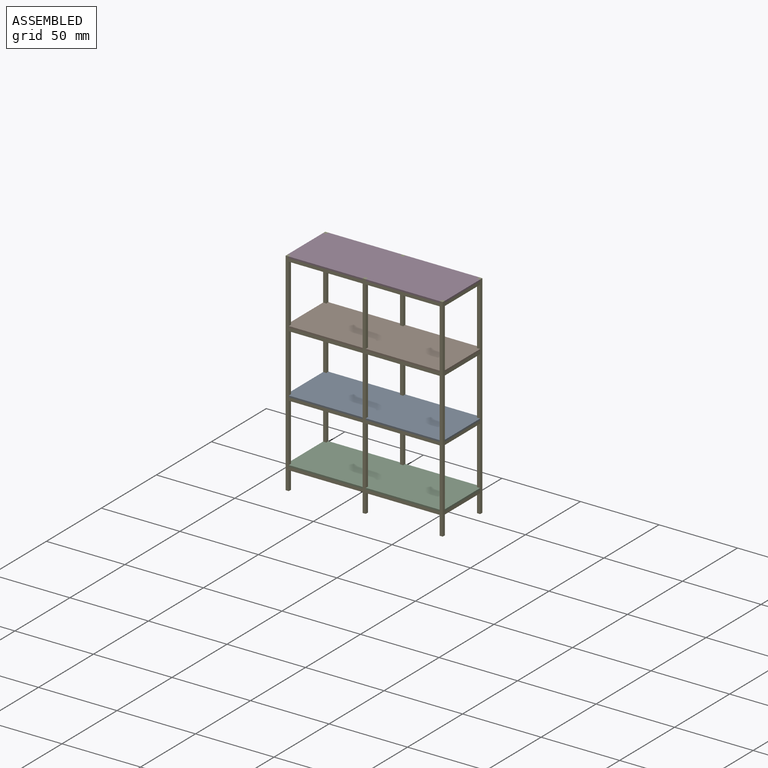
[diagram: assembled view]
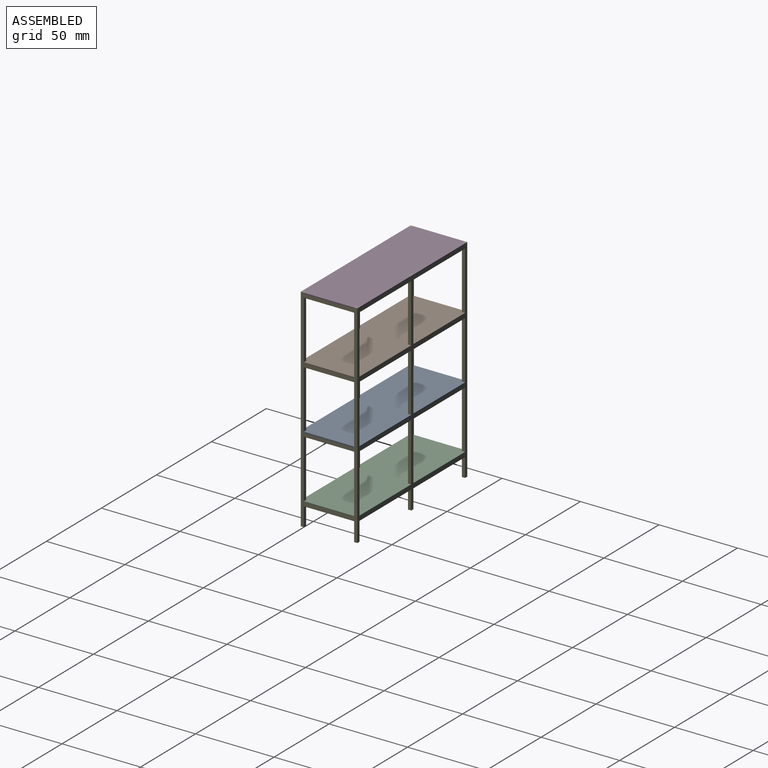
[diagram: assembled view, second angle]
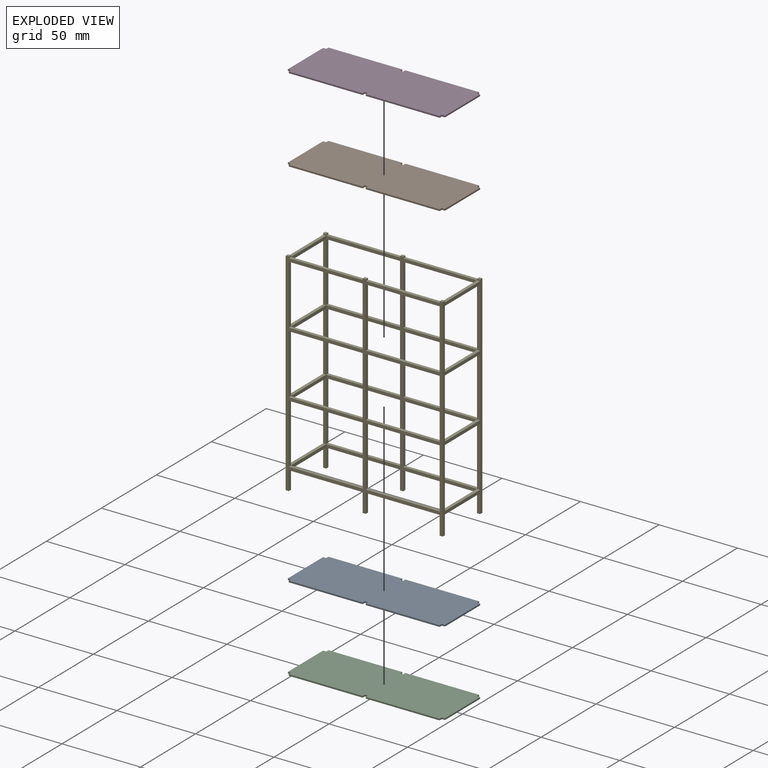
[diagram: exploded view]
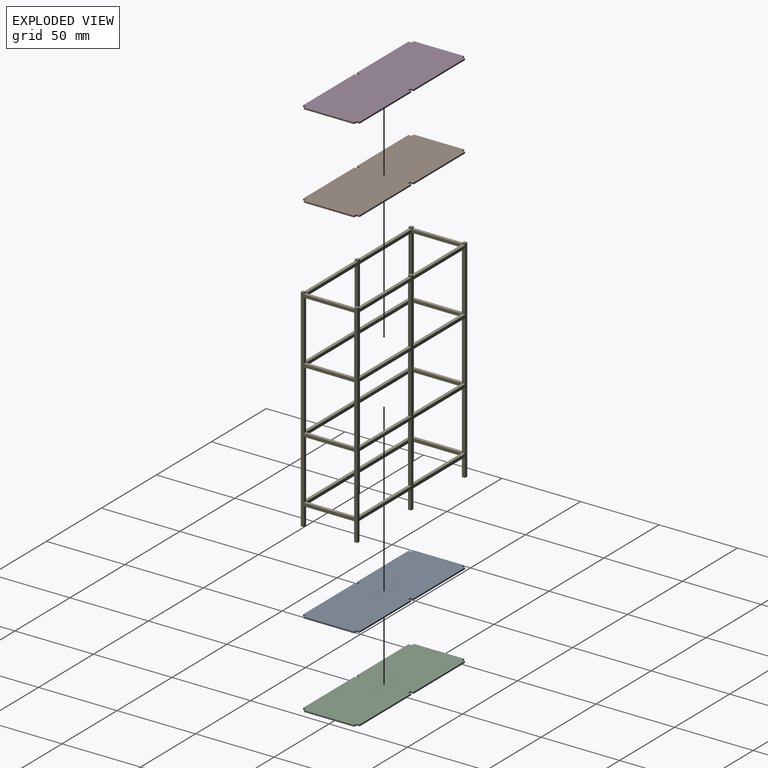
[diagram: exploded view, second angle]
ASSEMBLY  parts=5 mates=4
PART A: 22 faces, bbox 100x36x1 mm
  f0: plane 32x1mm, normal (-1,0,0), area 32mm2, adj f6,f7,f11,f13
  f1: plane 47x1mm, normal (0,-1,0), area 47mm2, adj f6,f7,f14,f17
  f2: plane 47x1mm, normal (0,-1,0), area 47mm2, adj f6,f7,f16,f20
  f3: plane 32x1mm, normal (1,0,0), area 32mm2, adj f6,f7,f18,f21
  f4: plane 47x1mm, normal (0,1,0), area 47mm2, adj f6,f7,f10,f12
  f5: plane 47x1mm, normal (0,1,0), area 47mm2, adj f6,f7,f9,f19
  f6: plane 100x36mm, normal (0,0,-1), area 3576mm2, adj f0,f1,f2,f3,f4,f5,f8,f9
  f7: plane 100x36mm, normal (0,0,1), area 3576mm2, adj f0,f1,f2,f3,f4,f5,f8,f9
  f8: plane 2x1mm, normal (0,1,0), area 2mm2, adj f6,f7,f9,f10
  f9: plane 2x1mm, normal (-1,0,0), area 2mm2, adj f5,f6,f7,f8
  f10: plane 2x1mm, normal (1,0,0), area 2mm2, adj f4,f6,f7,f8
  f11: plane 2x1mm, normal (0,1,0), area 2mm2, adj f0,f6,f7,f12
  f12: plane 2x1mm, normal (-1,0,0), area 2mm2, adj f4,f6,f7,f11
  f13: plane 2x1mm, normal (0,-1,0), area 2mm2, adj f0,f6,f7,f14
  f14: plane 2x1mm, normal (-1,0,0), area 2mm2, adj f1,f6,f7,f13
  f15: plane 2x1mm, normal (0,-1,0), area 2mm2, adj f6,f7,f16,f17
  f16: plane 2x1mm, normal (-1,0,0), area 2mm2, adj f2,f6,f7,f15
  f17: plane 2x1mm, normal (1,0,0), area 2mm2, adj f1,f6,f7,f15
  f18: plane 2x1mm, normal (0,1,0), area 2mm2, adj f3,f6,f7,f19
  f19: plane 2x1mm, normal (1,0,0), area 2mm2, adj f5,f6,f7,f18
  f20: plane 2x1mm, normal (1,0,0), area 2mm2, adj f2,f6,f7,f21
  f21: plane 2x1mm, normal (0,-1,0), area 2mm2, adj f3,f6,f7,f20
PART B: 22 faces, bbox 100x36x1 mm
  f0: plane 32x1mm, normal (-1,0,0), area 32mm2, adj f6,f7,f11,f13
  f1: plane 47x1mm, normal (0,-1,0), area 47mm2, adj f6,f7,f14,f17
  f2: plane 47x1mm, normal (0,-1,0), area 47mm2, adj f6,f7,f16,f20
  f3: plane 32x1mm, normal (1,0,0), area 32mm2, adj f6,f7,f18,f21
  f4: plane 47x1mm, normal (0,1,0), area 47mm2, adj f6,f7,f10,f12
  f5: plane 47x1mm, normal (0,1,0), area 47mm2, adj f6,f7,f9,f19
  f6: plane 100x36mm, normal (0,0,-1), area 3576mm2, adj f0,f1,f2,f3,f4,f5,f8,f9
  f7: plane 100x36mm, normal (0,0,1), area 3576mm2, adj f0,f1,f2,f3,f4,f5,f8,f9
  f8: plane 2x1mm, normal (0,1,0), area 2mm2, adj f6,f7,f9,f10
  f9: plane 2x1mm, normal (-1,0,0), area 2mm2, adj f5,f6,f7,f8
  f10: plane 2x1mm, normal (1,0,0), area 2mm2, adj f4,f6,f7,f8
  f11: plane 2x1mm, normal (0,1,0), area 2mm2, adj f0,f6,f7,f12
  f12: plane 2x1mm, normal (-1,0,0), area 2mm2, adj f4,f6,f7,f11
  f13: plane 2x1mm, normal (0,-1,0), area 2mm2, adj f0,f6,f7,f14
  f14: plane 2x1mm, normal (-1,0,0), area 2mm2, adj f1,f6,f7,f13
  f15: plane 2x1mm, normal (0,-1,0), area 2mm2, adj f6,f7,f16,f17
  f16: plane 2x1mm, normal (-1,0,0), area 2mm2, adj f2,f6,f7,f15
  f17: plane 2x1mm, normal (1,0,0), area 2mm2, adj f1,f6,f7,f15
  f18: plane 2x1mm, normal (0,1,0), area 2mm2, adj f3,f6,f7,f19
  f19: plane 2x1mm, normal (1,0,0), area 2mm2, adj f5,f6,f7,f18
  f20: plane 2x1mm, normal (1,0,0), area 2mm2, adj f2,f6,f7,f21
  f21: plane 2x1mm, normal (0,-1,0), area 2mm2, adj f3,f6,f7,f20
PART C: 22 faces, bbox 100x36x1 mm
  f0: plane 32x1mm, normal (-1,0,0), area 32mm2, adj f6,f7,f11,f13
  f1: plane 47x1mm, normal (0,-1,0), area 47mm2, adj f6,f7,f14,f17
  f2: plane 47x1mm, normal (0,-1,0), area 47mm2, adj f6,f7,f16,f20
  f3: plane 32x1mm, normal (1,0,0), area 32mm2, adj f6,f7,f18,f21
  f4: plane 47x1mm, normal (0,1,0), area 47mm2, adj f6,f7,f10,f12
  f5: plane 47x1mm, normal (0,1,0), area 47mm2, adj f6,f7,f9,f19
  f6: plane 100x36mm, normal (0,0,-1), area 3576mm2, adj f0,f1,f2,f3,f4,f5,f8,f9
  f7: plane 100x36mm, normal (0,0,1), area 3576mm2, adj f0,f1,f2,f3,f4,f5,f8,f9
  f8: plane 2x1mm, normal (0,1,0), area 2mm2, adj f6,f7,f9,f10
  f9: plane 2x1mm, normal (-1,0,0), area 2mm2, adj f5,f6,f7,f8
  f10: plane 2x1mm, normal (1,0,0), area 2mm2, adj f4,f6,f7,f8
  f11: plane 2x1mm, normal (0,1,0), area 2mm2, adj f0,f6,f7,f12
  f12: plane 2x1mm, normal (-1,0,0), area 2mm2, adj f4,f6,f7,f11
  f13: plane 2x1mm, normal (0,-1,0), area 2mm2, adj f0,f6,f7,f14
  f14: plane 2x1mm, normal (-1,0,0), area 2mm2, adj f1,f6,f7,f13
  f15: plane 2x1mm, normal (0,-1,0), area 2mm2, adj f6,f7,f16,f17
  f16: plane 2x1mm, normal (-1,0,0), area 2mm2, adj f2,f6,f7,f15
  f17: plane 2x1mm, normal (1,0,0), area 2mm2, adj f1,f6,f7,f15
  f18: plane 2x1mm, normal (0,1,0), area 2mm2, adj f3,f6,f7,f19
  f19: plane 2x1mm, normal (1,0,0), area 2mm2, adj f5,f6,f7,f18
  f20: plane 2x1mm, normal (1,0,0), area 2mm2, adj f2,f6,f7,f21
  f21: plane 2x1mm, normal (0,-1,0), area 2mm2, adj f3,f6,f7,f20
PART D: 22 faces, bbox 100x36x1 mm
  f0: plane 32x1mm, normal (-1,0,0), area 32mm2, adj f6,f7,f15,f17
  f1: plane 47x1mm, normal (0,-1,0), area 47mm2, adj f6,f7,f12,f20
  f2: plane 47x1mm, normal (0,-1,0), area 47mm2, adj f6,f7,f13,f16
  f3: plane 32x1mm, normal (1,0,0), area 32mm2, adj f6,f7,f19,f21
  f4: plane 47x1mm, normal (0,1,0), area 47mm2, adj f6,f7,f10,f14
  f5: plane 47x1mm, normal (0,1,0), area 47mm2, adj f6,f7,f9,f18
  f6: plane 100x36mm, normal (0,0,-1), area 3576mm2, adj f0,f1,f2,f3,f4,f5,f8,f9
  f7: plane 100x36mm, normal (0,0,1), area 3576mm2, adj f0,f1,f2,f3,f4,f5,f8,f9
  f8: plane 2x1mm, normal (0,1,0), area 2mm2, adj f6,f7,f9,f10
  f9: plane 2x1mm, normal (-1,0,0), area 2mm2, adj f5,f6,f7,f8
  f10: plane 2x1mm, normal (1,0,0), area 2mm2, adj f4,f6,f7,f8
  f11: plane 2x1mm, normal (0,-1,0), area 2mm2, adj f6,f7,f12,f13
  f12: plane 2x1mm, normal (-1,0,0), area 2mm2, adj f1,f6,f7,f11
  f13: plane 2x1mm, normal (1,0,0), area 2mm2, adj f2,f6,f7,f11
  f14: plane 2x1mm, normal (-1,0,0), area 2mm2, adj f4,f6,f7,f15
  f15: plane 2x1mm, normal (0,1,0), area 2mm2, adj f0,f6,f7,f14
  f16: plane 2x1mm, normal (-1,0,0), area 2mm2, adj f2,f6,f7,f17
  f17: plane 2x1mm, normal (0,-1,0), area 2mm2, adj f0,f6,f7,f16
  f18: plane 2x1mm, normal (1,0,0), area 2mm2, adj f5,f6,f7,f19
  f19: plane 2x1mm, normal (0,1,0), area 2mm2, adj f3,f6,f7,f18
  f20: plane 2x1mm, normal (1,0,0), area 2mm2, adj f1,f6,f7,f21
  f21: plane 2x1mm, normal (0,-1,0), area 2mm2, adj f3,f6,f7,f20
PART E: 134 faces, bbox 100x36x135 mm
  f0: plane 38x2mm, normal (-1,0,0), area 76mm2, adj f13,f62,f65,f95
  f1: plane 38x2mm, normal (-1,0,0), area 76mm2, adj f14,f61,f64,f95
  f2: plane 32x2mm, normal (-1,0,0), area 64mm2, adj f31,f32,f59,f124
  f3: plane 38x2mm, normal (-1,0,0), area 76mm2, adj f24,f40,f43,f104
  f4: plane 32x2mm, normal (-1,0,0), area 64mm2, adj f29,f30,f59,f124
  f5: plane 38x2mm, normal (-1,0,0), area 76mm2, adj f25,f41,f44,f104
  f6: plane 12x2mm, normal (-1,0,0), area 24mm2, adj f17,f19,f63,f95
  f7: plane 12x2mm, normal (-1,0,0), area 24mm2, adj f26,f27,f42,f104
  f8: plane 38x2mm, normal (-1,0,0), area 76mm2, adj f15,f46,f60,f95
  f9: plane 38x2mm, normal (-1,0,0), area 76mm2, adj f23,f38,f39,f104
  f10: plane 32x2mm, normal (-1,0,0), area 64mm2, adj f33,f34,f59,f124
  f11: plane 2x1mm, normal (-1,0,0), area 2mm2, adj f16,f21,f45,f95
  f12: plane 2x1mm, normal (-1,0,0), area 2mm2, adj f22,f28,f37,f104
  f13: plane 38x2mm, normal (0,1,0), area 76mm2, adj f0,f18,f30,f31
  f14: plane 38x2mm, normal (0,1,0), area 76mm2, adj f1,f18,f32,f33
  f15: plane 38x2mm, normal (0,1,0), area 76mm2, adj f8,f18,f34,f35
  f16: plane 2x1mm, normal (0,1,0), area 2mm2, adj f11,f18,f21,f36
  f17: plane 2x2mm, normal (0,0,-1), area 4mm2, adj f6,f18,f19,f95
  f18: plane 135x36mm, normal (1,0,0), area 796mm2, adj f13,f14,f15,f16,f17,f19,f21,f22
  f19: plane 12x2mm, normal (0,1,0), area 24mm2, adj f6,f17,f18,f29
  f20: plane 32x2mm, normal (-1,0,0), area 64mm2, adj f35,f36,f59,f124
  f21: plane 2x2mm, normal (0,0,1), area 4mm2, adj f11,f16,f18,f95
  f22: plane 2x1mm, normal (0,-1,0), area 2mm2, adj f12,f18,f28,f36
  f23: plane 38x2mm, normal (0,-1,0), area 76mm2, adj f9,f18,f34,f35
  f24: plane 38x2mm, normal (0,-1,0), area 76mm2, adj f3,f18,f32,f33
  f25: plane 38x2mm, normal (0,-1,0), area 76mm2, adj f5,f18,f30,f31
  f26: plane 2x2mm, normal (0,0,-1), area 4mm2, adj f7,f18,f27,f104
  f27: plane 12x2mm, normal (0,-1,0), area 24mm2, adj f7,f18,f26,f29
  f28: plane 2x2mm, normal (0,0,1), area 4mm2, adj f12,f18,f22,f104
  f29: plane 32x2mm, normal (0,0,-1), area 64mm2, adj f4,f18,f19,f27
  f30: plane 32x2mm, normal (0,0,1), area 64mm2, adj f4,f13,f18,f25
  f31: plane 32x2mm, normal (0,0,-1), area 64mm2, adj f2,f13,f18,f25
  f32: plane 32x2mm, normal (0,0,1), area 64mm2, adj f2,f14,f18,f24
  f33: plane 32x2mm, normal (0,0,-1), area 64mm2, adj f10,f14,f18,f24
  f34: plane 32x2mm, normal (0,0,1), area 64mm2, adj f10,f15,f18,f23
  f35: plane 32x2mm, normal (0,0,-1), area 64mm2, adj f15,f18,f20,f23
  f36: plane 32x2mm, normal (0,0,1), area 64mm2, adj f16,f18,f20,f22
  f37: plane 47x2mm, normal (0,0,1), area 94mm2, adj f12,f104,f124,f125
  f38: plane 47x2mm, normal (0,0,-1), area 94mm2, adj f9,f104,f120,f124
  f39: plane 47x2mm, normal (0,0,1), area 94mm2, adj f9,f104,f120,f124
  f40: plane 47x2mm, normal (0,0,-1), area 94mm2, adj f3,f104,f119,f124
  f41: plane 47x2mm, normal (0,0,1), area 94mm2, adj f5,f104,f117,f124
  f42: plane 47x2mm, normal (0,0,-1), area 94mm2, adj f7,f104,f118,f124
  f43: plane 47x2mm, normal (0,0,1), area 94mm2, adj f3,f104,f119,f124
  f44: plane 47x2mm, normal (0,0,-1), area 94mm2, adj f5,f104,f117,f124
  f45: plane 47x2mm, normal (0,0,1), area 94mm2, adj f11,f58,f59,f95
  f46: plane 47x2mm, normal (0,0,-1), area 94mm2, adj f8,f54,f59,f95
  f47: plane 38x2mm, normal (-1,0,0), area 76mm2, adj f59,f71,f72,f95
  f48: plane 12x2mm, normal (-1,0,0), area 24mm2, adj f55,f59,f70,f95
  f49: plane 38x2mm, normal (-1,0,0), area 76mm2, adj f59,f69,f73,f95
  f50: plane 38x2mm, normal (-1,0,0), area 76mm2, adj f59,f66,f68,f95
  f51: plane 38x2mm, normal (1,0,0), area 76mm2, adj f59,f62,f65,f95
  f52: plane 12x2mm, normal (1,0,0), area 24mm2, adj f55,f59,f63,f95
  f53: plane 38x2mm, normal (1,0,0), area 76mm2, adj f59,f61,f64,f95
  f54: plane 38x2mm, normal (1,0,0), area 76mm2, adj f46,f59,f60,f95
  f55: plane 2x2mm, normal (0,0,-1), area 4mm2, adj f48,f52,f59,f95
  f56: plane 2x2mm, normal (0,0,1), area 4mm2, adj f57,f58,f59,f95
  f57: plane 2x1mm, normal (-1,0,0), area 2mm2, adj f56,f59,f67,f95
  f58: plane 2x1mm, normal (1,0,0), area 2mm2, adj f45,f56,f59,f95
  f59: plane 135x96mm, normal (0,1,0), area 1022mm2, adj f2,f4,f10,f20,f45,f46,f47,f48
  f60: plane 47x2mm, normal (0,0,1), area 94mm2, adj f8,f54,f59,f95
  f61: plane 47x2mm, normal (0,0,-1), area 94mm2, adj f1,f53,f59,f95
  f62: plane 47x2mm, normal (0,0,1), area 94mm2, adj f0,f51,f59,f95
  f63: plane 47x2mm, normal (0,0,-1), area 94mm2, adj f6,f52,f59,f95
  f64: plane 47x2mm, normal (0,0,1), area 94mm2, adj f1,f53,f59,f95
  f65: plane 47x2mm, normal (0,0,-1), area 94mm2, adj f0,f51,f59,f95
  f66: plane 47x2mm, normal (0,0,-1), area 94mm2, adj f50,f59,f81,f95
  f67: plane 47x2mm, normal (0,0,1), area 94mm2, adj f57,f59,f85,f95
  f68: plane 47x2mm, normal (0,0,1), area 94mm2, adj f50,f59,f81,f95
  f69: plane 47x2mm, normal (0,0,-1), area 94mm2, adj f49,f59,f74,f95
  f70: plane 47x2mm, normal (0,0,-1), area 94mm2, adj f48,f59,f84,f95
  f71: plane 47x2mm, normal (0,0,1), area 94mm2, adj f47,f59,f77,f95
  f72: plane 47x2mm, normal (0,0,-1), area 94mm2, adj f47,f59,f77,f95
  f73: plane 47x2mm, normal (0,0,1), area 94mm2, adj f49,f59,f74,f95
  f74: plane 38x2mm, normal (1,0,0), area 76mm2, adj f69,f73,f89,f95
  f75: plane 32x2mm, normal (1,0,0), area 64mm2, adj f59,f107,f108,f124
  f76: plane 38x2mm, normal (1,0,0), area 76mm2, adj f99,f104,f128,f133
  f77: plane 38x2mm, normal (1,0,0), area 76mm2, adj f71,f72,f88,f95
  f78: plane 38x2mm, normal (1,0,0), area 76mm2, adj f100,f104,f131,f132
  f79: plane 32x2mm, normal (1,0,0), area 64mm2, adj f59,f105,f106,f124
  f80: plane 12x2mm, normal (1,0,0), area 24mm2, adj f101,f102,f104,f130
  f81: plane 38x2mm, normal (1,0,0), area 76mm2, adj f66,f68,f91,f95
  f82: plane 32x2mm, normal (1,0,0), area 64mm2, adj f59,f111,f112,f124
  f83: plane 38x2mm, normal (1,0,0), area 76mm2, adj f97,f104,f126,f129
  f84: plane 12x2mm, normal (1,0,0), area 24mm2, adj f70,f92,f93,f95
  f85: plane 2x1mm, normal (1,0,0), area 2mm2, adj f67,f90,f95,f96
  f86: plane 32x2mm, normal (1,0,0), area 64mm2, adj f59,f109,f110,f124
  f87: plane 2x1mm, normal (1,0,0), area 2mm2, adj f98,f103,f104,f127
  f88: plane 38x2mm, normal (0,1,0), area 76mm2, adj f77,f94,f105,f107
  f89: plane 38x2mm, normal (0,1,0), area 76mm2, adj f74,f94,f108,f112
  f90: plane 2x1mm, normal (0,1,0), area 2mm2, adj f85,f94,f96,f109
  f91: plane 38x2mm, normal (0,1,0), area 76mm2, adj f81,f94,f110,f111
  f92: plane 2x2mm, normal (0,0,-1), area 4mm2, adj f84,f93,f94,f95
  f93: plane 12x2mm, normal (0,1,0), area 24mm2, adj f84,f92,f94,f106
  f94: plane 135x36mm, normal (-1,0,0), area 796mm2, adj f88,f89,f90,f91,f92,f93,f95,f96
  f95: plane 135x100mm, normal (0,-1,0), area 1562mm2, adj f0,f1,f6,f8,f11,f17,f18,f21
  f96: plane 2x2mm, normal (0,0,1), area 4mm2, adj f85,f90,f94,f95
  f97: plane 38x2mm, normal (0,-1,0), area 76mm2, adj f83,f94,f110,f111
  f98: plane 2x1mm, normal (0,-1,0), area 2mm2, adj f87,f94,f103,f109
  f99: plane 38x2mm, normal (0,-1,0), area 76mm2, adj f76,f94,f108,f112
  f100: plane 38x2mm, normal (0,-1,0), area 76mm2, adj f78,f94,f105,f107
  f101: plane 2x2mm, normal (0,0,-1), area 4mm2, adj f80,f94,f102,f104
  f102: plane 12x2mm, normal (0,-1,0), area 24mm2, adj f80,f94,f101,f106
  f103: plane 2x2mm, normal (0,0,1), area 4mm2, adj f87,f94,f98,f104
  f104: plane 135x100mm, normal (0,1,0), area 1562mm2, adj f3,f5,f7,f9,f12,f18,f26,f28
  f105: plane 32x2mm, normal (0,0,1), area 64mm2, adj f79,f88,f94,f100
  f106: plane 32x2mm, normal (0,0,-1), area 64mm2, adj f79,f93,f94,f102
  f107: plane 32x2mm, normal (0,0,-1), area 64mm2, adj f75,f88,f94,f100
  f108: plane 32x2mm, normal (0,0,1), area 64mm2, adj f75,f89,f94,f99
  f109: plane 32x2mm, normal (0,0,1), area 64mm2, adj f86,f90,f94,f98
  f110: plane 32x2mm, normal (0,0,-1), area 64mm2, adj f86,f91,f94,f97
  f111: plane 32x2mm, normal (0,0,1), area 64mm2, adj f82,f91,f94,f97
  f112: plane 32x2mm, normal (0,0,-1), area 64mm2, adj f82,f89,f94,f99
  f113: plane 38x2mm, normal (-1,0,0), area 76mm2, adj f104,f124,f131,f132
  f114: plane 12x2mm, normal (-1,0,0), area 24mm2, adj f104,f121,f124,f130
  f115: plane 38x2mm, normal (-1,0,0), area 76mm2, adj f104,f124,f128,f133
  f116: plane 38x2mm, normal (-1,0,0), area 76mm2, adj f104,f124,f126,f129
  f117: plane 38x2mm, normal (1,0,0), area 76mm2, adj f41,f44,f104,f124
  f118: plane 12x2mm, normal (1,0,0), area 24mm2, adj f42,f104,f121,f124
  f119: plane 38x2mm, normal (1,0,0), area 76mm2, adj f40,f43,f104,f124
  f120: plane 38x2mm, normal (1,0,0), area 76mm2, adj f38,f39,f104,f124
  f121: plane 2x2mm, normal (0,0,-1), area 4mm2, adj f104,f114,f118,f124
  f122: plane 2x1mm, normal (-1,0,0), area 2mm2, adj f104,f123,f124,f127
  f123: plane 2x2mm, normal (0,0,1), area 4mm2, adj f104,f122,f124,f125
  f124: plane 135x96mm, normal (0,-1,0), area 1022mm2, adj f2,f4,f10,f20,f37,f38,f39,f40
  f125: plane 2x1mm, normal (1,0,0), area 2mm2, adj f37,f104,f123,f124
  f126: plane 47x2mm, normal (0,0,-1), area 94mm2, adj f83,f104,f116,f124
  f127: plane 47x2mm, normal (0,0,1), area 94mm2, adj f87,f104,f122,f124
  f128: plane 47x2mm, normal (0,0,-1), area 94mm2, adj f76,f104,f115,f124
  f129: plane 47x2mm, normal (0,0,1), area 94mm2, adj f83,f104,f116,f124
  f130: plane 47x2mm, normal (0,0,-1), area 94mm2, adj f80,f104,f114,f124
  f131: plane 47x2mm, normal (0,0,1), area 94mm2, adj f78,f104,f113,f124
  f132: plane 47x2mm, normal (0,0,-1), area 94mm2, adj f78,f104,f113,f124
  f133: plane 47x2mm, normal (0,0,1), area 94mm2, adj f76,f104,f115,f124
PLACE A at identity
PLACE B at identity
PLACE C at identity
PLACE D at identity
PLACE E at identity fixed
MATE fastened B.f6 <-> E.f68  axis (0,0,-1) through (-48,-18,94)mm
MATE fastened D.f6 <-> E.f67  axis (0,0,-1) through (-48,-18,134)mm
MATE fastened A.f6 <-> E.f73  axis (0,0,-1) through (-48,-18,54)mm
MATE fastened C.f6 <-> E.f71  axis (0,0,-1) through (-48,-18,14)mm
